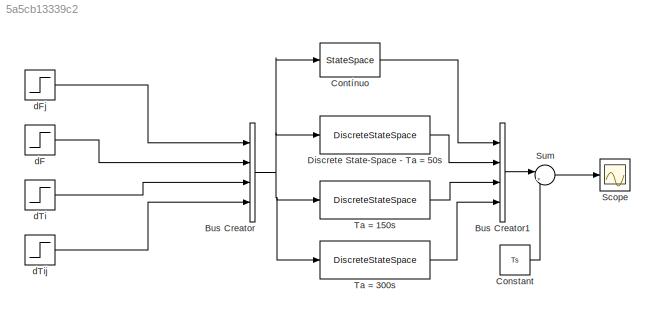
MODEL slx_5a5cb13339c2
KIND model
CONFIG AbsTol = auto
CONFIG EnableMultiTasking = off
CONFIG FixedStep = auto
CONFIG MaxStep = auto
CONFIG MinStep = auto
CONFIG RelTol = 1e-3
CONFIG SampleTimeConstraint = Unconstrained
CONFIG SolverName = VariableStepAuto
CONFIG StartTime = 0.0
CONFIG StopTime = 1800
BLOCK [BusCreator] Bus Creator
  DisplayOption = bar
  InheritFromInputs = on
  Inputs = 4
  Ports = [4, 1]
BLOCK [BusCreator] Bus Creator1
  DisplayOption = bar
  InheritFromInputs = on
  Inputs = 4
  Ports = [4, 1]
BLOCK [Constant] Constant
  Value = Ts
BLOCK [StateSpace] Contínuo
  A = A
  B = B
  C = C
  D = D
  InitialCondition = 0
  Ports = [1, 1]
BLOCK [DiscreteStateSpace] Discrete State-Space - Ta = 50s
  A = ftd1.A
  B = ftd1.B
  C = ftd1.C
  D = ftd1.D
  SampleTime = 50
BLOCK [Scope] Scope
  Floating = off
  NumInputPorts = 1
  Ports = [1]
  ScopeSpecificationString = Simulink.scopes.TimeScopeBlockCfg('CurrentConfiguration', extmgr.ConfigurationSet(extmgr.Configuration('Core','General UI',true),extmgr.Configuration('Core','Source UI',true),extmgr.Configuration('Sources','WiredSimulink',true),extmgr.Configuration('Visuals','Time Domain',true,'SerializedDisplays',{struct('MinYLimReal','51.55468','MaxYLimReal','52.70792','YLabelReal','','MinYLimMag','51.55468','Ma...<+1411ch>
BLOCK [Sum] Sum
  Inputs = |++
  Ports = [2, 1]
BLOCK [DiscreteStateSpace] Ta = 150s
  A = ftd2.A
  B = ftd2.B
  C = ftd2.C
  D = ftd2.D
  SampleTime = 150
BLOCK [DiscreteStateSpace] Ta = 300s
  A = ftd3.A
  B = ftd3.B
  C = ftd3.C
  D = ftd3.D
  SampleTime = 300
BLOCK [Step] dF
  After = dF
  SampleTime = 0
BLOCK [Step] dFj
  After = dFj
  SampleTime = 0
BLOCK [Step] dTi
  After = dTi
  SampleTime = 0
BLOCK [Step] dTij
  After = dTij
  SampleTime = 0
LINE Bus Creator1:1 -> Sum:1
NET Bus Creator:1 -> Contínuo:1, Discrete State-Space - Ta = 50s:1, Ta = 150s:1, Ta = 300s:1
LINE Constant:1 -> Sum:2
LINE Contínuo:1 -> Bus Creator1:1
LINE Discrete State-Space - Ta = 50s:1 -> Bus Creator1:2
LINE Sum:1 -> Scope:1
LINE Ta = 150s:1 -> Bus Creator1:3
LINE Ta = 300s:1 -> Bus Creator1:4
LINE dF:1 -> Bus Creator:2
LINE dFj:1 -> Bus Creator:1
LINE dTi:1 -> Bus Creator:3
LINE dTij:1 -> Bus Creator:4
note: NET lines group one-source signal fan-out (src -> all destinations, sorted); 1:1 wires keep LINE
